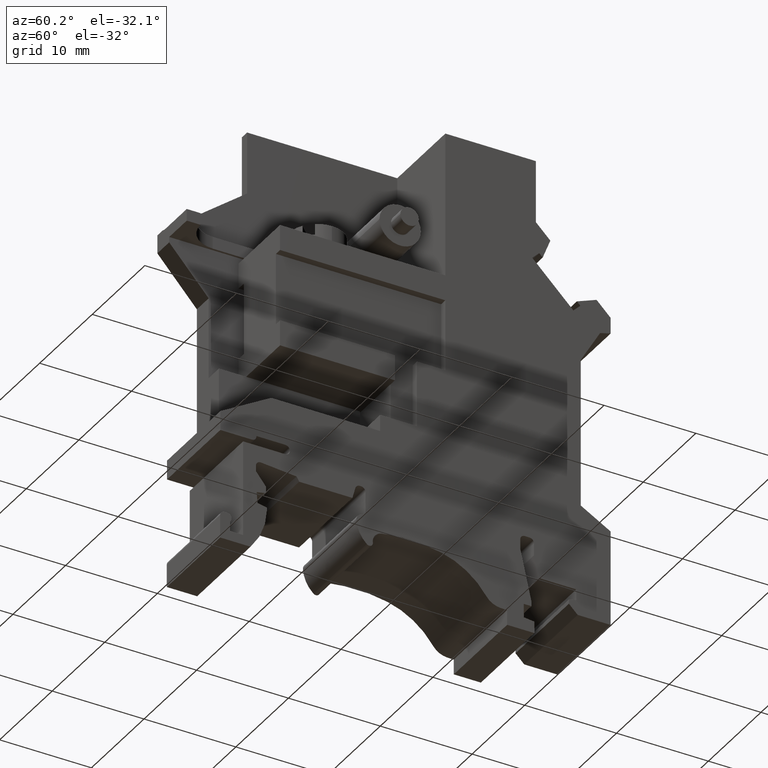
[diagram: clean part render]
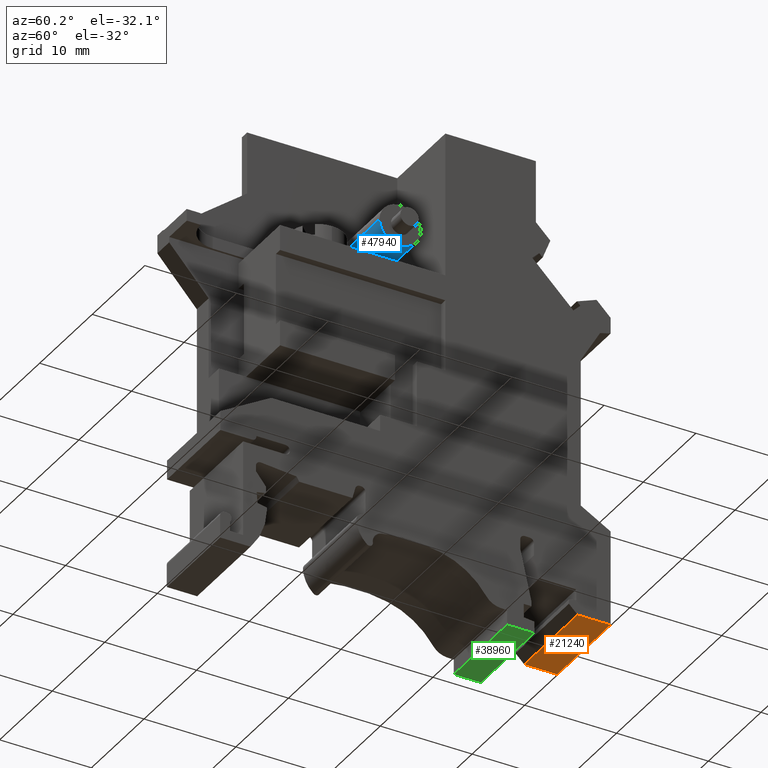
[diagram: same view with three faces highlighted in distinct colors, each labeled with its STEP entity id]
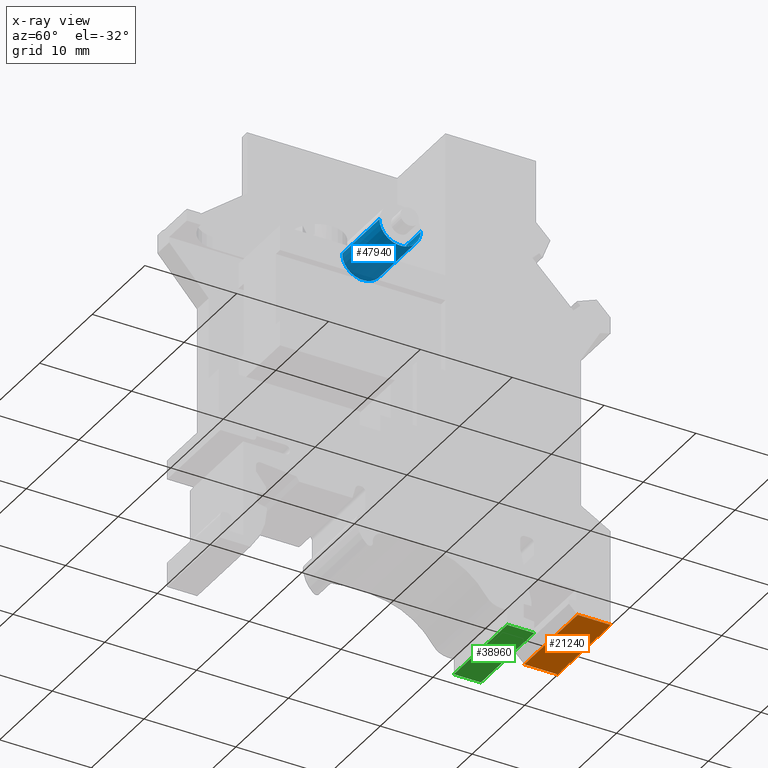
[diagram: x-ray of the same camera — body ghosted, the three highlighted faces saturated]
A machine part, auxiliary view with three faces highlighted in distinct colors.
The next image is the same camera in x-ray (body ghosted, the three faces saturated) — at least one of them is partly hidden behind the body in this view.
Their STEP definitions:

[orange] entity #21240 — the highlighted planar face has unit normal (-0, -0, -1).
#6150=CARTESIAN_POINT('',(0.182572317994292,-2.78930799999999,12.));
#6160=VERTEX_POINT('',#6150);
#6190=CARTESIAN_POINT('',(-6.22364864864863,-2.78930799999999,12.));
#6200=DIRECTION('',(1.,0.,0.));
#6210=VECTOR('',#6200,1.);
#6220=LINE('',#6190,#6210);
#6230=CARTESIAN_POINT('',(3.77757231799447,-2.78930799999999,12.));
#6240=VERTEX_POINT('',#6230);
#6250=EDGE_CURVE('',#6160,#6240,#6220,.T.);
#20940=CARTESIAN_POINT('',(0.803892661554215,-2.78930799999999,24.));
#20950=DIRECTION('',(-0.,-1.,-0.));
#20960=DIRECTION('',(-1.,0.,0.));
#20970=AXIS2_PLACEMENT_3D('',#20940,#20950,#20960);
#20980=PLANE('',#20970);
#20990=CARTESIAN_POINT('',(3.77757231799447,-2.78930799999999,12.));
#21000=DIRECTION('',(0.,0.,1.));
#21010=VECTOR('',#21000,1.);
#21020=LINE('',#20990,#21010);
#21030=CARTESIAN_POINT('',(3.77757231799447,-2.78930799999999,22.15));
#21040=VERTEX_POINT('',#21030);
#21050=EDGE_CURVE('',#6240,#21040,#21020,.T.);
#21060=ORIENTED_EDGE('',*,*,#21050,.T.);
#21070=ORIENTED_EDGE('',*,*,#6250,.T.);
#21080=CARTESIAN_POINT('',(0.182572317994292,-2.78930799999999,12.));
#21090=DIRECTION('',(0.,0.,1.));
#21100=VECTOR('',#21090,1.);
#21110=LINE('',#21080,#21100);
#21120=CARTESIAN_POINT('',(0.182572317994292,-2.78930799999999,22.15));
#21130=VERTEX_POINT('',#21120);
#21140=EDGE_CURVE('',#6160,#21130,#21110,.T.);
#21150=ORIENTED_EDGE('',*,*,#21140,.F.);
#21160=CARTESIAN_POINT('',(-6.22364864864863,-2.78930799999999,22.15));
#21170=DIRECTION('',(1.,0.,0.));
#21180=VECTOR('',#21170,1.);
#21190=LINE('',#21160,#21180);
#21200=EDGE_CURVE('',#21130,#21040,#21190,.T.);
#21210=ORIENTED_EDGE('',*,*,#21200,.F.);
#21220=EDGE_LOOP('',(#21210,#21150,#21070,#21060));
#21230=FACE_OUTER_BOUND('',#21220,.T.);
#21240=ADVANCED_FACE('',(#21230),#20980,.T.);

[blue] entity #47940 — the highlighted cylindrical surface (edge-blend (fillet) strip) has radius 2.25 mm, axis along (1, 0, 0).
#8720=CARTESIAN_POINT('',(-17.9724276820055,36.110692,13.));
#8730=DIRECTION('',(0.,0.,1.));
#8740=DIRECTION('',(1.,0.,0.));
#8750=AXIS2_PLACEMENT_3D('',#8720,#8730,#8740);
#8760=CIRCLE('',#8750,2.25);
#8770=CARTESIAN_POINT('',(-15.7224276820055,36.110692,13.));
#8780=VERTEX_POINT('',#8770);
#8790=CARTESIAN_POINT('',(-20.2224276820055,36.110692,13.));
#8800=VERTEX_POINT('',#8790);
#8830=EDGE_CURVE('',#8800,#8780,#8760,.T.);
#47450=CARTESIAN_POINT('',(-17.9724276820055,36.110692,20.1));
#47460=DIRECTION('',(0.,0.,1.));
#47470=DIRECTION('',(1.,0.,0.));
#47480=AXIS2_PLACEMENT_3D('',#47450,#47460,#47470);
#47490=CIRCLE('',#47480,2.25);
#47500=CARTESIAN_POINT('',(-15.7224276820055,36.110692,20.1));
#47510=VERTEX_POINT('',#47500);
#47520=CARTESIAN_POINT('',(-20.2224276820055,36.110692,20.1));
#47530=VERTEX_POINT('',#47520);
#47560=EDGE_CURVE('',#47530,#47510,#47490,.T.);
#47730=CARTESIAN_POINT('',(-17.9724276820055,36.110692,13.));
#47740=DIRECTION('',(0.,0.,1.));
#47750=DIRECTION('',(1.,0.,0.));
#47760=AXIS2_PLACEMENT_3D('',#47730,#47740,#47750);
#47770=CYLINDRICAL_SURFACE('',#47760,2.25);
#47780=CARTESIAN_POINT('',(-15.7224276820055,36.110692,13.));
#47790=DIRECTION('',(0.,0.,1.));
#47800=VECTOR('',#47790,1.);
#47810=LINE('',#47780,#47800);
#47820=EDGE_CURVE('',#8780,#47510,#47810,.T.);
#47830=ORIENTED_EDGE('',*,*,#47820,.T.);
#47840=ORIENTED_EDGE('',*,*,#8830,.T.);
#47850=CARTESIAN_POINT('',(-20.2224276820055,36.110692,13.));
#47860=DIRECTION('',(0.,0.,1.));
#47870=VECTOR('',#47860,1.);
#47880=LINE('',#47850,#47870);
#47890=EDGE_CURVE('',#8800,#47530,#47880,.T.);
#47900=ORIENTED_EDGE('',*,*,#47890,.F.);
#47910=ORIENTED_EDGE('',*,*,#47560,.F.);
#47920=EDGE_LOOP('',(#47910,#47900,#47840,#47830));
#47930=FACE_OUTER_BOUND('',#47920,.T.);
#47940=ADVANCED_FACE('',(#47930),#47770,.T.);

[green] entity #38960 — the highlighted planar face has unit normal (-0, -0, -1).
#4690=CARTESIAN_POINT('',(-7.49242768200551,-6.28930799999999,12.));
#4700=VERTEX_POINT('',#4690);
#4730=CARTESIAN_POINT('',(-6.22364864864863,-6.28930799999999,12.));
#4740=DIRECTION('',(1.,0.,0.));
#4750=VECTOR('',#4740,1.);
#4760=LINE('',#4730,#4750);
#4770=CARTESIAN_POINT('',(-4.54242768200547,-6.28930799999999,12.));
#4780=VERTEX_POINT('',#4770);
#4790=EDGE_CURVE('',#4700,#4780,#4760,.T.);
#23940=CARTESIAN_POINT('',(-7.49242768200551,-6.28930799999999,12.));
#23950=DIRECTION('',(0.,0.,1.));
#23960=VECTOR('',#23950,1.);
#23970=LINE('',#23940,#23960);
#23980=CARTESIAN_POINT('',(-7.49242768200551,-6.28930799999999,22.15));
#23990=VERTEX_POINT('',#23980);
#24000=EDGE_CURVE('',#4700,#23990,#23970,.T.);
#29560=CARTESIAN_POINT('',(-4.54242768200547,-6.28930799999999,22.15));
#29570=VERTEX_POINT('',#29560);
#29600=CARTESIAN_POINT('',(-6.22364864864863,-6.28930799999999,22.15));
#29610=DIRECTION('',(-1.,0.,0.));
#29620=VECTOR('',#29610,1.);
#29630=LINE('',#29600,#29620);
#29640=EDGE_CURVE('',#29570,#23990,#29630,.T.);
#38680=CARTESIAN_POINT('',(-4.54242768200547,-6.28930799999999,12.));
#38690=DIRECTION('',(0.,0.,1.));
#38700=VECTOR('',#38690,1.);
#38710=LINE('',#38680,#38700);
#38720=EDGE_CURVE('',#4780,#29570,#38710,.T.);
#38850=CARTESIAN_POINT('',(-6.99242768200551,-6.28930799999999,24.));
#38860=DIRECTION('',(-0.,-1.,-0.));
#38870=DIRECTION('',(-1.,0.,0.));
#38880=AXIS2_PLACEMENT_3D('',#38850,#38860,#38870);
#38890=PLANE('',#38880);
#38900=ORIENTED_EDGE('',*,*,#38720,.T.);
#38910=ORIENTED_EDGE('',*,*,#4790,.T.);
#38920=ORIENTED_EDGE('',*,*,#24000,.F.);
#38930=ORIENTED_EDGE('',*,*,#29640,.T.);
#38940=EDGE_LOOP('',(#38930,#38920,#38910,#38900));
#38950=FACE_OUTER_BOUND('',#38940,.T.);
#38960=ADVANCED_FACE('',(#38950),#38890,.T.);